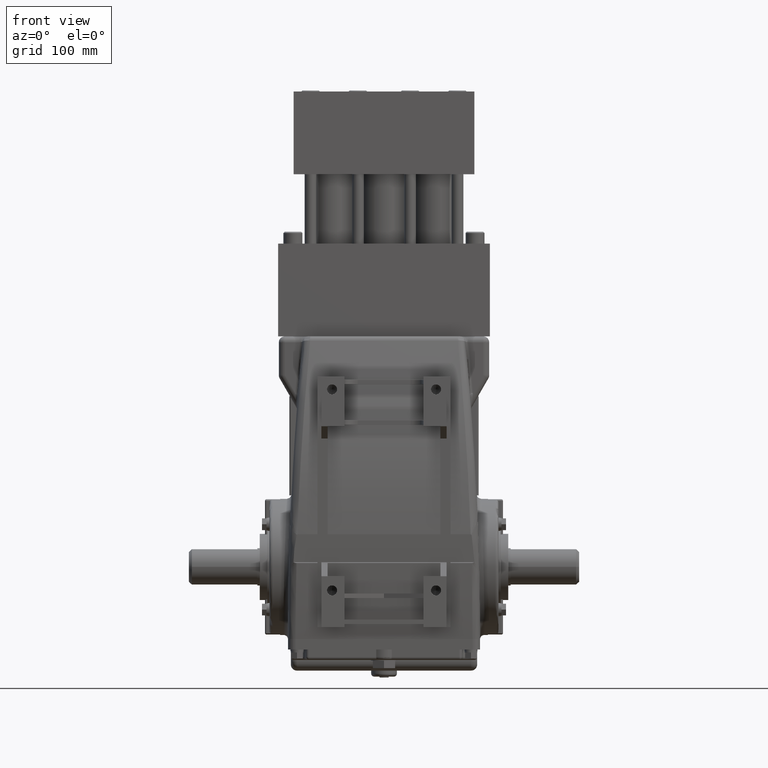
[diagram: clean part render]
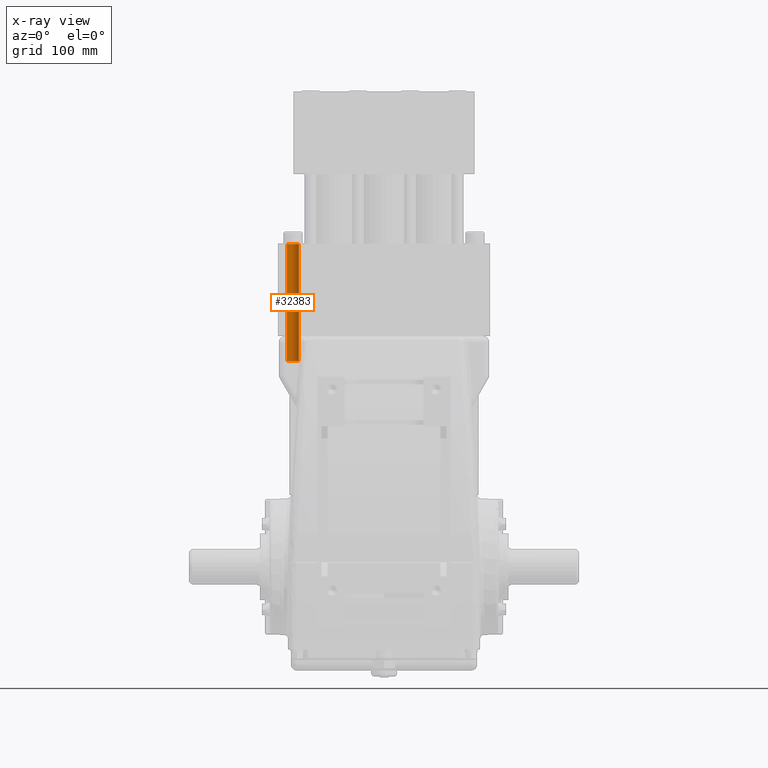
[diagram: x-ray — body ghosted, one internal face saturated and labeled with its STEP entity id]
A machine part, front view, then the same camera in x-ray: the body is ghosted and one INTERNAL B-rep face — a face not visible from any outside direction — is saturated and labeled: STEP entity #32383.
In plain terms, the highlighted cylindrical surface (edge-blend (fillet) strip) has radius 5 mm, axis along (-0, -0, 1).
Its self-contained STEP definition (entity closure, byte-faithful):
#5017 = DIRECTION ( 'NONE',  ( -1.000000000000000000, -0.0000000000000000000, -0.0000000000000000000 ) ) ;
#5018 = VECTOR ( 'NONE', #5017, 39.37007874015748100 ) ;
#5019 = CARTESIAN_POINT ( 'NONE',  ( -1.249999999999998400, 0.0000000000000000000, 0.1968503937007869400 ) ) ;
#5020 = LINE ( 'NONE', #5019, #5018 ) ;
#5073 = DIRECTION ( 'NONE',  ( 0.0000000000000000000, 0.0000000000000000000, 1.000000000000000000 ) ) ;
#5074 = DIRECTION ( 'NONE',  ( -1.000000000000000000, -0.0000000000000000000, -0.0000000000000000000 ) ) ;
#5075 = CARTESIAN_POINT ( 'NONE',  ( -1.249999999999998400, 0.0000000000000000000, 0.0000000000000000000 ) ) ;
#5076 = AXIS2_PLACEMENT_3D ( 'NONE', #5075, #5074, #5073 ) ;
#5077 = CYLINDRICAL_SURFACE ( 'NONE', #5076, 0.1968503937007869400 ) ;
#5079 = FACE_OUTER_BOUND ( 'NONE', #32488, .T. ) ;
#5113 = CARTESIAN_POINT ( 'NONE',  ( 4.298110236220471900, 0.0000000000000000000, 0.1968503937007865500 ) ) ;
#5114 = DIRECTION ( 'NONE',  ( 0.0000000000000000000, 0.0000000000000000000, 1.000000000000000000 ) ) ;
#5115 = DIRECTION ( 'NONE',  ( -1.000000000000000000, -0.0000000000000000000, -0.0000000000000000000 ) ) ;
#5116 = CARTESIAN_POINT ( 'NONE',  ( 4.298110236220471900, 0.0000000000000000000, 0.0000000000000000000 ) ) ;
#5117 = AXIS2_PLACEMENT_3D ( 'NONE', #5116, #5115, #5114 ) ;
#5118 = CIRCLE ( 'NONE', #5117, 0.1968503937007865500 ) ;
#5119 = CARTESIAN_POINT ( 'NONE',  ( 0.4094488188976377900, 2.410642428784201400E-017, -0.1968503937007869400 ) ) ;
#5120 = CARTESIAN_POINT ( 'NONE',  ( 0.4094488188976377900, 0.0000000000000000000, 0.1968503937007869400 ) ) ;
#6194 = CARTESIAN_POINT ( 'NONE',  ( 4.298110236220471900, 2.410642428784199300E-017, -0.1968503937007865500 ) ) ;
#6234 = DIRECTION ( 'NONE',  ( 0.0000000000000000000, 0.0000000000000000000, -1.000000000000000000 ) ) ;
#6235 = DIRECTION ( 'NONE',  ( 1.000000000000000000, 0.0000000000000000000, 0.0000000000000000000 ) ) ;
#6236 = CARTESIAN_POINT ( 'NONE',  ( 0.4094488188976377900, 0.0000000000000000000, 0.0000000000000000000 ) ) ;
#6237 = AXIS2_PLACEMENT_3D ( 'NONE', #6236, #6235, #6234 ) ;
#6239 = CIRCLE ( 'NONE', #6237, 0.1968503937007869400 ) ;
#6241 = DIRECTION ( 'NONE',  ( -1.000000000000000000, -0.0000000000000000000, -0.0000000000000000000 ) ) ;
#6243 = VECTOR ( 'NONE', #6241, 39.37007874015748100 ) ;
#6244 = CARTESIAN_POINT ( 'NONE',  ( -1.249999999999998400, 2.410642428784201400E-017, -0.1968503937007869400 ) ) ;
#6245 = LINE ( 'NONE', #6244, #6243 ) ;
#32347 = ORIENTED_EDGE ( 'NONE', *, *, #32348, .F. ) ;
#32348 = EDGE_CURVE ( 'NONE', #32393, #32388, #5020, .T. ) ;
#32383 = ADVANCED_FACE ( 'NONE', ( #5079 ), #5077, .T. ) ;
#32388 = VERTEX_POINT ( 'NONE', #5120 ) ;
#32389 = VERTEX_POINT ( 'NONE', #5119 ) ;
#32392 = EDGE_CURVE ( 'NONE', #32393, #32471, #5118, .T. ) ;
#32393 = VERTEX_POINT ( 'NONE', #5113 ) ;
#32471 = VERTEX_POINT ( 'NONE', #6194 ) ;
#32484 = ORIENTED_EDGE ( 'NONE', *, *, #32485, .T. ) ;
#32485 = EDGE_CURVE ( 'NONE', #32471, #32389, #6245, .T. ) ;
#32486 = ORIENTED_EDGE ( 'NONE', *, *, #32487, .T. ) ;
#32487 = EDGE_CURVE ( 'NONE', #32389, #32388, #6239, .T. ) ;
#32488 = EDGE_LOOP ( 'NONE', ( #32489, #32484, #32486, #32347 ) ) ;
#32489 = ORIENTED_EDGE ( 'NONE', *, *, #32392, .T. ) ;